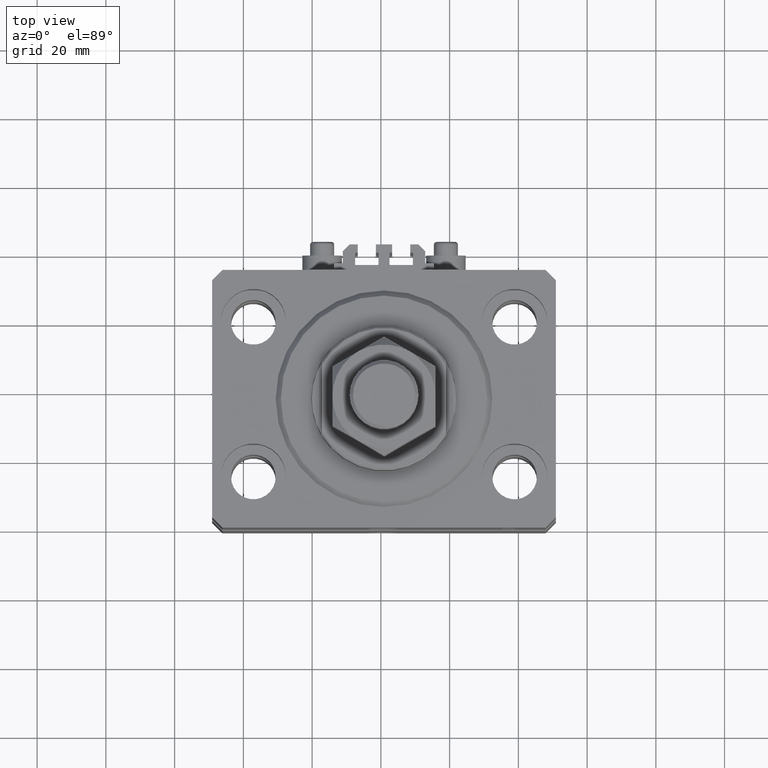
[diagram: clean part render]
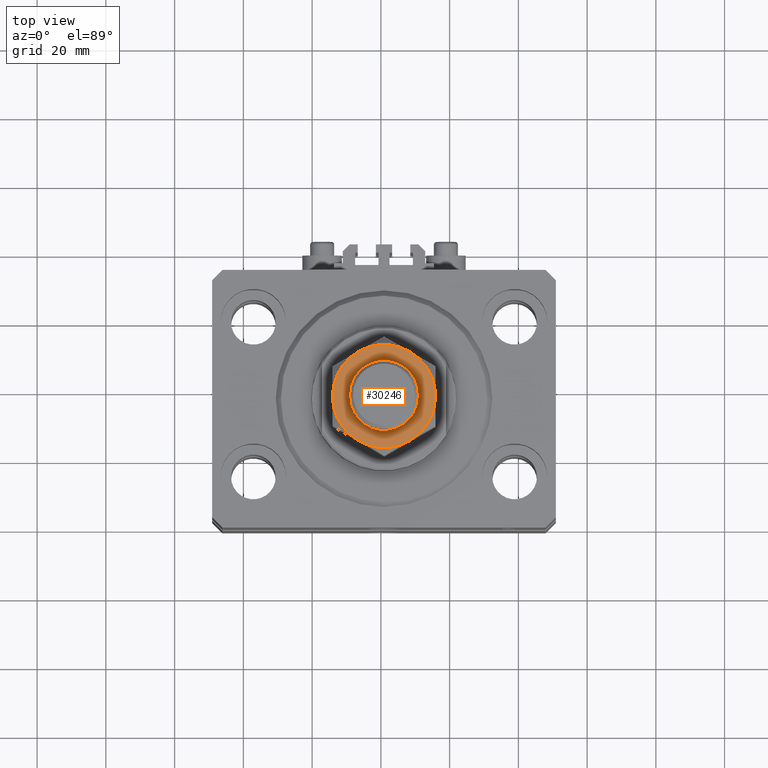
[diagram: same view with one face highlighted and labeled with its STEP entity id]
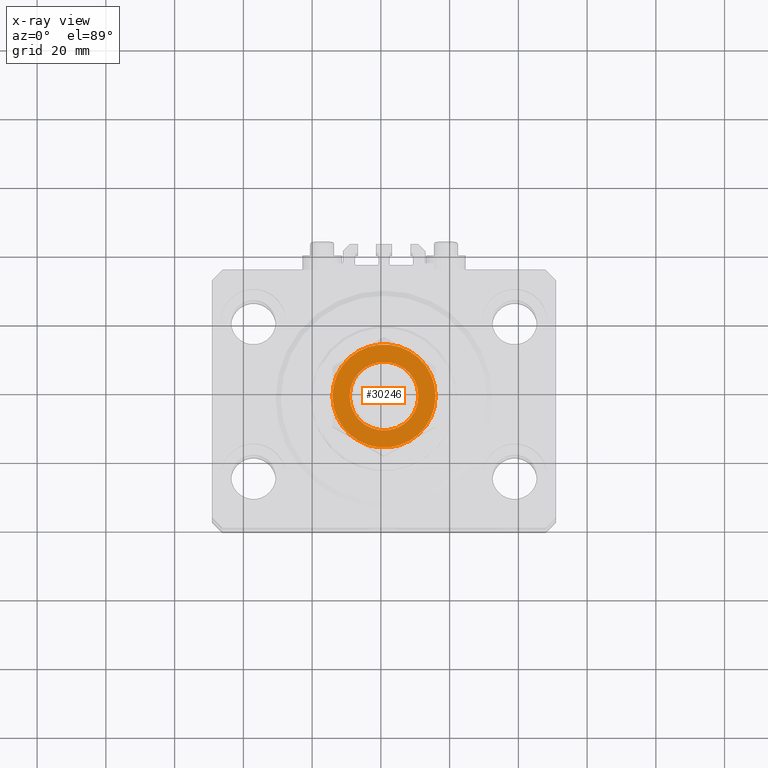
[diagram: x-ray of the same camera — body ghosted, the highlighted face saturated]
A machine part, top view. The second image highlights one B-rep face of the part: STEP entity #30246.
The next image is the same camera in x-ray: the body ghosted, the highlighted face saturated — about 2% of this face is hidden behind the body in this view.
In plain terms, the highlighted planar face has unit normal (0, 0, 1).
Its self-contained STEP definition (entity closure, byte-faithful):
#209 = VERTEX_POINT ( 'NONE', #15213 ) ;
#306 = DIRECTION ( 'NONE',  ( 1.000000000000000000, 0.000000000000000000, 0.000000000000000000 ) ) ;
#405 = CIRCLE ( 'NONE', #38568, 14.99999999999999645 ) ;
#763 = CIRCLE ( 'NONE', #19824, 14.99999999999999645 ) ;
#1202 = AXIS2_PLACEMENT_3D ( 'NONE', #19206, #27173, #306 ) ;
#1417 = EDGE_LOOP ( 'NONE', ( #46153, #8364, #22343, #32626, #7046, #11552 ) ) ;
#1832 = CARTESIAN_POINT ( 'NONE',  ( 0.000000000000000000, 0.000000000000000000, 25.00000000000000000 ) ) ;
#2175 = DIRECTION ( 'NONE',  ( 1.000000000000000000, 0.000000000000000000, 0.000000000000000000 ) ) ;
#4340 = DIRECTION ( 'NONE',  ( 1.000000000000000000, 0.000000000000000000, 0.000000000000000000 ) ) ;
#6432 = EDGE_CURVE ( 'NONE', #29144, #13265, #43038, .T. ) ;
#6955 = CARTESIAN_POINT ( 'NONE',  ( 9.999999999999998224, 0.000000000000000000, 25.00000000000000000 ) ) ;
#7038 = CARTESIAN_POINT ( 'NONE',  ( -14.99999999999999645, 0.000000000000000000, 25.00000000000000000 ) ) ;
#7046 = ORIENTED_EDGE ( 'NONE', *, *, #6432, .T. ) ;
#7258 = AXIS2_PLACEMENT_3D ( 'NONE', #43131, #15756, #28165 ) ;
#8364 = ORIENTED_EDGE ( 'NONE', *, *, #45117, .T. ) ;
#9767 = VERTEX_POINT ( 'NONE', #25026 ) ;
#10887 = AXIS2_PLACEMENT_3D ( 'NONE', #42677, #16523, #4340 ) ;
#11552 = ORIENTED_EDGE ( 'NONE', *, *, #14817, .T. ) ;
#11678 = CIRCLE ( 'NONE', #10887, 14.99999999999999645 ) ;
#12007 = DIRECTION ( 'NONE',  ( -0.000000000000000000, 0.000000000000000000, -1.000000000000000000 ) ) ;
#12734 = DIRECTION ( 'NONE',  ( 1.000000000000000000, 0.000000000000000000, 0.000000000000000000 ) ) ;
#13265 = VERTEX_POINT ( 'NONE', #17844 ) ;
#14095 = VERTEX_POINT ( 'NONE', #6955 ) ;
#14817 = EDGE_CURVE ( 'NONE', #13265, #34560, #48906, .T. ) ;
#15213 = CARTESIAN_POINT ( 'NONE',  ( -7.500000000000000000, 12.99038105676657651, 25.00000000000000000 ) ) ;
#15756 = DIRECTION ( 'NONE',  ( 0.000000000000000000, -0.000000000000000000, 1.000000000000000000 ) ) ;
#15895 = ORIENTED_EDGE ( 'NONE', *, *, #47981, .T. ) ;
#16523 = DIRECTION ( 'NONE',  ( 0.000000000000000000, 0.000000000000000000, 1.000000000000000000 ) ) ;
#17567 = ORIENTED_EDGE ( 'NONE', *, *, #32670, .T. ) ;
#17694 = VERTEX_POINT ( 'NONE', #36013 ) ;
#17844 = CARTESIAN_POINT ( 'NONE',  ( -7.500000000000000888, -12.99038105676657828, 25.00000000000000000 ) ) ;
#19206 = CARTESIAN_POINT ( 'NONE',  ( 0.000000000000000000, 0.000000000000000000, 25.00000000000000000 ) ) ;
#19280 = DIRECTION ( 'NONE',  ( 1.000000000000000000, 0.000000000000000000, 0.000000000000000000 ) ) ;
#19824 = AXIS2_PLACEMENT_3D ( 'NONE', #36279, #33032, #2175 ) ;
#22343 = ORIENTED_EDGE ( 'NONE', *, *, #26428, .T. ) ;
#23123 = AXIS2_PLACEMENT_3D ( 'NONE', #33665, #37144, #45137 ) ;
#23177 = CARTESIAN_POINT ( 'NONE',  ( 0.000000000000000000, 0.000000000000000000, 25.00000000000000000 ) ) ;
#23229 = CIRCLE ( 'NONE', #47111, 9.999999999999998224 ) ;
#24226 = DIRECTION ( 'NONE',  ( 0.000000000000000000, -0.000000000000000000, 1.000000000000000000 ) ) ;
#24847 = DIRECTION ( 'NONE',  ( -0.000000000000000000, 0.000000000000000000, -1.000000000000000000 ) ) ;
#25026 = CARTESIAN_POINT ( 'NONE',  ( -9.999999999999998224, 1.224646799147353059E-15, 25.00000000000000000 ) ) ;
#25816 = CIRCLE ( 'NONE', #45734, 14.99999999999999645 ) ;
#26428 = EDGE_CURVE ( 'NONE', #32759, #209, #763, .T. ) ;
#27173 = DIRECTION ( 'NONE',  ( 0.000000000000000000, -0.000000000000000000, 1.000000000000000000 ) ) ;
#27245 = DIRECTION ( 'NONE',  ( 0.000000000000000000, -0.000000000000000000, 1.000000000000000000 ) ) ;
#28165 = DIRECTION ( 'NONE',  ( 1.000000000000000000, 0.000000000000000000, -0.000000000000000000 ) ) ;
#29144 = VERTEX_POINT ( 'NONE', #7038 ) ;
#30246 = ADVANCED_FACE ( 'NONE', ( #46649, #38896 ), #31914, .T. ) ;
#30973 = AXIS2_PLACEMENT_3D ( 'NONE', #23177, #12007, #12734 ) ;
#31914 = PLANE ( 'NONE',  #7258 ) ;
#32445 = DIRECTION ( 'NONE',  ( 1.000000000000000000, 0.000000000000000000, 0.000000000000000000 ) ) ;
#32626 = ORIENTED_EDGE ( 'NONE', *, *, #41385, .T. ) ;
#32670 = EDGE_CURVE ( 'NONE', #14095, #9767, #23229, .T. ) ;
#32759 = VERTEX_POINT ( 'NONE', #43991 ) ;
#32832 = DIRECTION ( 'NONE',  ( 1.000000000000000000, 0.000000000000000000, 0.000000000000000000 ) ) ;
#33032 = DIRECTION ( 'NONE',  ( 0.000000000000000000, -0.000000000000000000, 1.000000000000000000 ) ) ;
#33665 = CARTESIAN_POINT ( 'NONE',  ( 0.000000000000000000, 0.000000000000000000, 25.00000000000000000 ) ) ;
#34560 = VERTEX_POINT ( 'NONE', #38635 ) ;
#36013 = CARTESIAN_POINT ( 'NONE',  ( 14.99999999999999645, 1.502314598737159426E-15, 25.00000000000000000 ) ) ;
#36279 = CARTESIAN_POINT ( 'NONE',  ( 0.000000000000000000, 0.000000000000000000, 25.00000000000000000 ) ) ;
#36500 = CIRCLE ( 'NONE', #30973, 9.999999999999998224 ) ;
#36683 = EDGE_LOOP ( 'NONE', ( #17567, #15895 ) ) ;
#37144 = DIRECTION ( 'NONE',  ( 0.000000000000000000, -0.000000000000000000, 1.000000000000000000 ) ) ;
#38568 = AXIS2_PLACEMENT_3D ( 'NONE', #46191, #27245, #19280 ) ;
#38635 = CARTESIAN_POINT ( 'NONE',  ( 7.500000000000001776, -12.99038105676657473, 25.00000000000000000 ) ) ;
#38896 = FACE_OUTER_BOUND ( 'NONE', #1417, .T. ) ;
#41385 = EDGE_CURVE ( 'NONE', #209, #29144, #405, .T. ) ;
#41455 = EDGE_CURVE ( 'NONE', #34560, #17694, #25816, .T. ) ;
#42677 = CARTESIAN_POINT ( 'NONE',  ( 0.000000000000000000, 0.000000000000000000, 25.00000000000000000 ) ) ;
#43038 = CIRCLE ( 'NONE', #23123, 14.99999999999999645 ) ;
#43131 = CARTESIAN_POINT ( 'NONE',  ( 0.000000000000000000, 0.000000000000000000, 25.00000000000000000 ) ) ;
#43991 = CARTESIAN_POINT ( 'NONE',  ( 7.499999999999998224, 12.99038105676657651, 25.00000000000000000 ) ) ;
#44047 = CARTESIAN_POINT ( 'NONE',  ( 0.000000000000000000, 0.000000000000000000, 25.00000000000000000 ) ) ;
#45117 = EDGE_CURVE ( 'NONE', #17694, #32759, #11678, .T. ) ;
#45137 = DIRECTION ( 'NONE',  ( 1.000000000000000000, 0.000000000000000000, 0.000000000000000000 ) ) ;
#45734 = AXIS2_PLACEMENT_3D ( 'NONE', #1832, #24226, #32445 ) ;
#46153 = ORIENTED_EDGE ( 'NONE', *, *, #41455, .T. ) ;
#46191 = CARTESIAN_POINT ( 'NONE',  ( 0.000000000000000000, 0.000000000000000000, 25.00000000000000000 ) ) ;
#46649 = FACE_BOUND ( 'NONE', #36683, .T. ) ;
#47111 = AXIS2_PLACEMENT_3D ( 'NONE', #44047, #24847, #32832 ) ;
#47981 = EDGE_CURVE ( 'NONE', #9767, #14095, #36500, .T. ) ;
#48906 = CIRCLE ( 'NONE', #1202, 14.99999999999999645 ) ;